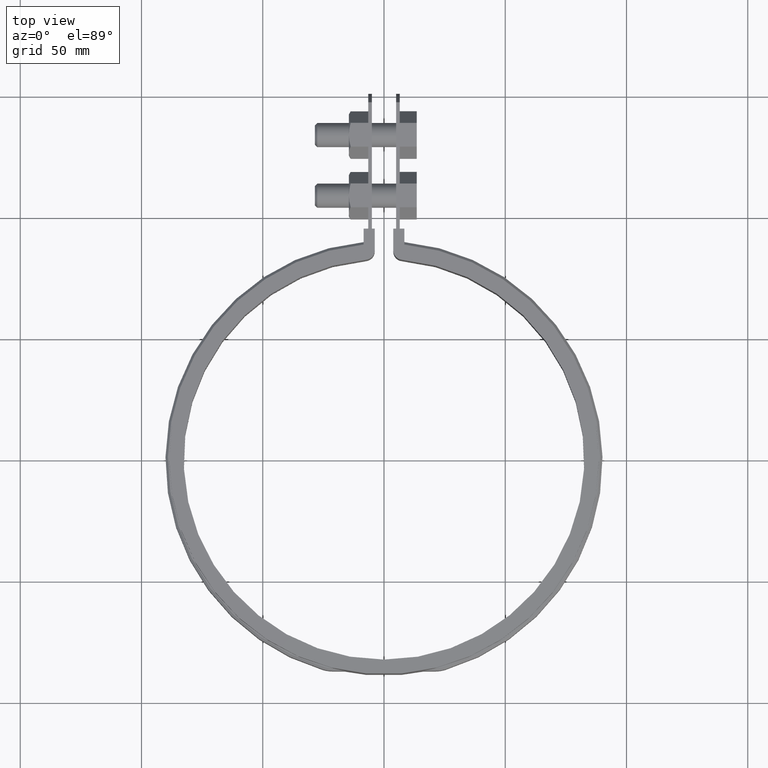
[diagram: clean part render]
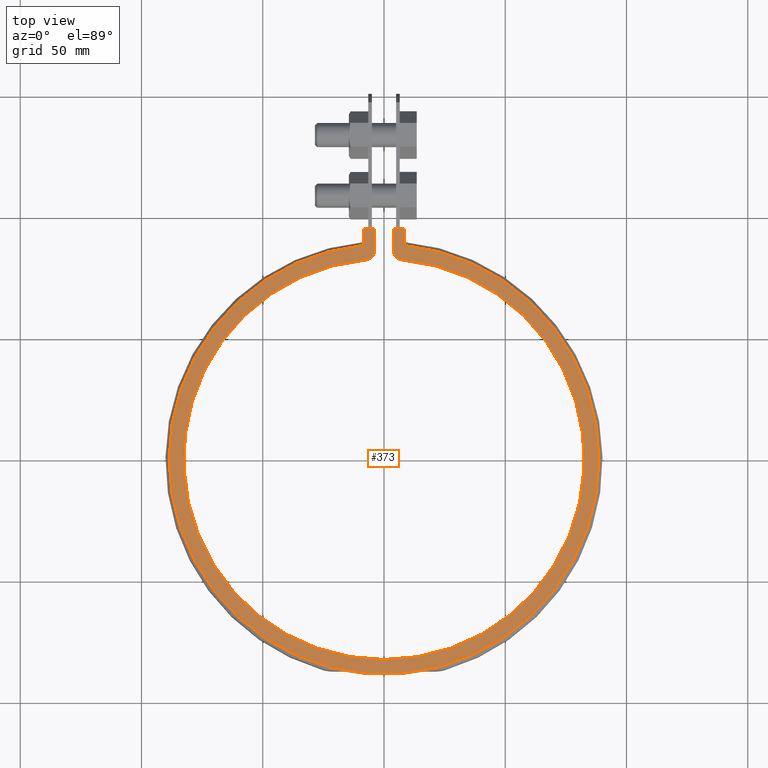
[diagram: same view with one face highlighted and labeled with its STEP entity id]
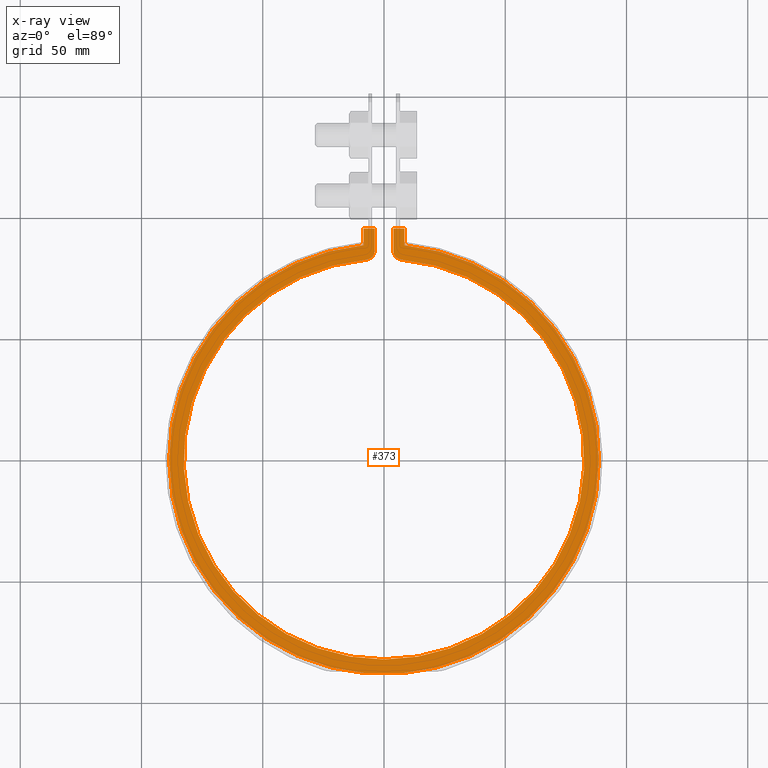
[diagram: x-ray of the same camera — body ghosted, the highlighted face saturated]
A machine part, top view. The second image highlights one B-rep face of the part: STEP entity #373.
The next image is the same camera in x-ray: the body ghosted, the highlighted face saturated — about 0% of this face is hidden behind the body in this view.
In plain terms, the highlighted planar face has unit normal (0, 0, 1).
Its self-contained STEP definition (entity closure, byte-faithful):
#373 = ADVANCED_FACE( '', ( #602 ), #603, .T. );
#602 = FACE_OUTER_BOUND( '', #1688, .T. );
#603 = PLANE( '', #1689 );
#1688 = EDGE_LOOP( '', ( #3902, #3903, #3904, #3905, #3906, #3907, #3908, #3909, #3910, #3911 ) );
#1689 = AXIS2_PLACEMENT_3D( '', #3912, #3913, #3914 );
#3902 = ORIENTED_EDGE( '', *, *, #4703, .T. );
#3903 = ORIENTED_EDGE( '', *, *, #4688, .T. );
#3904 = ORIENTED_EDGE( '', *, *, #4775, .T. );
#3905 = ORIENTED_EDGE( '', *, *, #4778, .T. );
#3906 = ORIENTED_EDGE( '', *, *, #4781, .T. );
#3907 = ORIENTED_EDGE( '', *, *, #4784, .T. );
#3908 = ORIENTED_EDGE( '', *, *, #4787, .T. );
#3909 = ORIENTED_EDGE( '', *, *, #4770, .T. );
#3910 = ORIENTED_EDGE( '', *, *, #4795, .T. );
#3911 = ORIENTED_EDGE( '', *, *, #4799, .T. );
#3912 = CARTESIAN_POINT( '', ( 7.80000000000001, 86.2480144698995, 1.50000000000000 ) );
#3913 = DIRECTION( '', ( 0.000000000000000, 2.54514470950076E-019, 1.00000000000000 ) );
#3914 = DIRECTION( '', ( 0.000000000000000, 1.00000000000000, -2.54514470950076E-019 ) );
#4688 = EDGE_CURVE( '', #5130, #5131, #5132, .T. );
#4703 = EDGE_CURVE( '', #5160, #5130, #5161, .T. );
#4770 = EDGE_CURVE( '', #5272, #5273, #5274, .T. );
#4775 = EDGE_CURVE( '', #5131, #5281, #5282, .T. );
#4778 = EDGE_CURVE( '', #5281, #5286, #5287, .T. );
#4781 = EDGE_CURVE( '', #5286, #5291, #5292, .T. );
#4784 = EDGE_CURVE( '', #5291, #5296, #5297, .T. );
#4787 = EDGE_CURVE( '', #5296, #5272, #5301, .T. );
#4795 = EDGE_CURVE( '', #5273, #5314, #5316, .T. );
#4799 = EDGE_CURVE( '', #5314, #5160, #5322, .T. );
#5130 = VERTEX_POINT( '', #6804 );
#5131 = VERTEX_POINT( '', #6805 );
#5132 = LINE( '', #6806, #6807 );
#5160 = VERTEX_POINT( '', #6853 );
#5161 = LINE( '', #6854, #6855 );
#5272 = VERTEX_POINT( '', #7994 );
#5273 = VERTEX_POINT( '', #7995 );
#5274 = LINE( '', #7996, #7997 );
#5281 = VERTEX_POINT( '', #8008 );
#5282 = LINE( '', #8009, #8010 );
#5286 = VERTEX_POINT( '', #8016 );
#5287 = CIRCLE( '', #8017, 3.99999999999999 );
#5291 = VERTEX_POINT( '', #8022 );
#5292 = CIRCLE( '', #8023, 82.6000000000007 );
#5296 = VERTEX_POINT( '', #8028 );
#5297 = CIRCLE( '', #8029, 4.00000000000000 );
#5301 = LINE( '', #8034, #8035 );
#5314 = VERTEX_POINT( '', #8058 );
#5316 = LINE( '', #8061, #8062 );
#5322 = CIRCLE( '', #8070, 88.6000000000001 );
#6804 = CARTESIAN_POINT( '', ( 8.39999999999999, 95.1000000000000, 1.50000000000000 ) );
#6805 = CARTESIAN_POINT( '', ( 3.80000000000002, 95.1000000000000, 1.50000000000000 ) );
#6806 = CARTESIAN_POINT( '', ( 8.39999999999999, 95.1000000000000, 1.50000000000000 ) );
#6807 = VECTOR( '', #8726, 1000.00000000000 );
#6853 = CARTESIAN_POINT( '', ( 8.39999999999998, 88.2009070248147, 1.50000000000000 ) );
#6854 = CARTESIAN_POINT( '', ( 8.39999999999999, 88.2009070248147, 1.50000000000000 ) );
#6855 = VECTOR( '', #8739, 1000.00000000000 );
#7994 = CARTESIAN_POINT( '', ( -3.79999999999998, 95.1000000000000, 1.50000000000000 ) );
#7995 = CARTESIAN_POINT( '', ( -8.40000000000000, 95.1000000000000, 1.50000000000000 ) );
#7996 = CARTESIAN_POINT( '', ( -3.80000000000000, 95.1000000000000, 1.50000000000000 ) );
#7997 = VECTOR( '', #8810, 1000.00000000000 );
#8008 = CARTESIAN_POINT( '', ( 3.80000000000002, 86.2480144698995, 1.50000000000000 ) );
#8009 = CARTESIAN_POINT( '', ( 3.80000000000002, 95.1000000000000, 1.50000000000000 ) );
#8010 = VECTOR( '', #8815, 1000.00000000000 );
#8016 = CARTESIAN_POINT( '', ( 7.43972286374133, 82.2642724620520, 1.50000000000000 ) );
#8017 = AXIS2_PLACEMENT_3D( '', #8818, #8819, #8820 );
#8022 = CARTESIAN_POINT( '', ( -7.43972286374120, 82.2642724620520, 1.50000000000000 ) );
#8023 = AXIS2_PLACEMENT_3D( '', #8825, #8826, #8827 );
#8028 = CARTESIAN_POINT( '', ( -3.79999999999998, 86.2480144698995, 1.50000000000000 ) );
#8029 = AXIS2_PLACEMENT_3D( '', #8832, #8833, #8834 );
#8034 = CARTESIAN_POINT( '', ( -3.79999999999998, 86.2480144698995, 1.50000000000000 ) );
#8035 = VECTOR( '', #8839, 1000.00000000000 );
#8058 = CARTESIAN_POINT( '', ( -8.40000000000000, 88.2009070248147, 1.50000000000000 ) );
#8061 = CARTESIAN_POINT( '', ( -8.40000000000000, 95.1000000000000, 1.50000000000000 ) );
#8062 = VECTOR( '', #8845, 1000.00000000000 );
#8070 = AXIS2_PLACEMENT_3D( '', #8851, #8852, #8853 );
#8726 = DIRECTION( '', ( -1.00000000000000, 0.000000000000000, 0.000000000000000 ) );
#8739 = DIRECTION( '', ( 6.93889390390723E-017, 1.00000000000000, 0.000000000000000 ) );
#8810 = DIRECTION( '', ( -1.00000000000000, 0.000000000000000, 0.000000000000000 ) );
#8815 = DIRECTION( '', ( -6.10365667473321E-017, -1.00000000000000, 0.000000000000000 ) );
#8818 = CARTESIAN_POINT( '', ( 7.80000000000001, 86.2480144698995, 1.50000000000000 ) );
#8819 = DIRECTION( '', ( 0.000000000000000, 2.54514470950076E-019, 1.00000000000000 ) );
#8820 = DIRECTION( '', ( -1.00000000000000, 0.000000000000000, 0.000000000000000 ) );
#8825 = CARTESIAN_POINT( '', ( -6.24500451351651E-014, -6.24500451351651E-013, 1.50000000000000 ) );
#8826 = DIRECTION( '', ( 0.000000000000000, -2.54514470950076E-019, -1.00000000000000 ) );
#8827 = DIRECTION( '', ( 1.00000000000000, 0.000000000000000, 0.000000000000000 ) );
#8832 = CARTESIAN_POINT( '', ( -7.79999999999998, 86.2480144698995, 1.50000000000000 ) );
#8833 = DIRECTION( '', ( 0.000000000000000, 2.54514470950076E-019, 1.00000000000000 ) );
#8834 = DIRECTION( '', ( 1.00000000000000, 0.000000000000000, 0.000000000000000 ) );
#8839 = DIRECTION( '', ( 6.10365667473322E-017, 1.00000000000000, -4.81482486096809E-035 ) );
#8845 = DIRECTION( '', ( -6.93889390390723E-017, -1.00000000000000, 0.000000000000000 ) );
#8851 = CARTESIAN_POINT( '', ( 6.93889390390723E-015, -9.71445146547012E-014, 1.50000000000000 ) );
#8852 = DIRECTION( '', ( 0.000000000000000, 2.54514470950076E-019, 1.00000000000000 ) );
#8853 = DIRECTION( '', ( 1.00000000000000, 0.000000000000000, 0.000000000000000 ) );